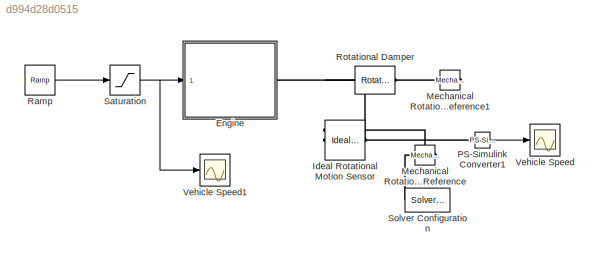
MODEL slx_d994d28d0515
KIND model
CONFIG AbsTol = 1e-4
CONFIG EnableMultiTasking = on
CONFIG FixedStep = auto
CONFIG MaxStep = auto
CONFIG MinStep = auto
CONFIG RelTol = 1e-5
CONFIG SampleTimeConstraint = Unconstrained
CONFIG Solver = ode15s
CONFIG SolverName = ode15s
CONFIG StartTime = 0.0
CONFIG StopTime = 100
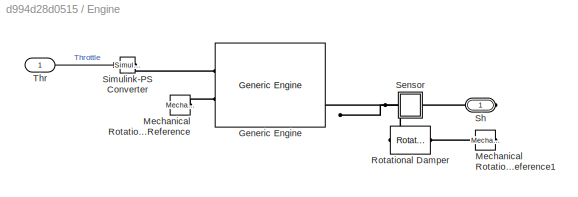
BLOCK [SubSystem] Engine
  Ports = [1, 0, 0, 0, 0, 0, 1]
  RequestExecContextInheritance = off
BLOCK [Reference] Engine/Generic Engine  REF=sdl_lib/Engines/Generic Engine
  Ports = [0, 0, 0, 0, 0, 2, 3]
  SourceBlock = sdl_lib/Engines/Generic Engine
  SourceProductBaseCode = LD
  SourceType = Generic Engine
BLOCK [Reference] Engine/Mechanical Rotational Reference  REF=fl_lib/Mechanical/Rotational Elements/Mechanical
Rotational Reference
  Ports = [0, 0, 0, 0, 0, 1]
  SourceBlock = fl_lib/Mechanical/Rotational Elements/Mechanical\nRotational Reference
  SourceProductBaseCode = SS
  SourceType = Mechanical\nRotational Reference
BLOCK [Reference] Engine/Mechanical Rotational Reference1  REF=fl_lib/Mechanical/Rotational Elements/Mechanical
Rotational Reference
  NameLocation = top
  Ports = [0, 0, 0, 0, 0, 1]
  SourceBlock = fl_lib/Mechanical/Rotational Elements/Mechanical\nRotational Reference
  SourceProductBaseCode = SS
  SourceType = Mechanical\nRotational Reference
BLOCK [Reference] Engine/Rotational Damper  REF=fl_lib/Mechanical/Rotational Elements/Rotational Damper
  Ports = [0, 0, 0, 0, 0, 1, 1]
  SourceBlock = fl_lib/Mechanical/Rotational Elements/Rotational Damper
  SourceProductBaseCode = SS
  SourceType = Rotational Damper
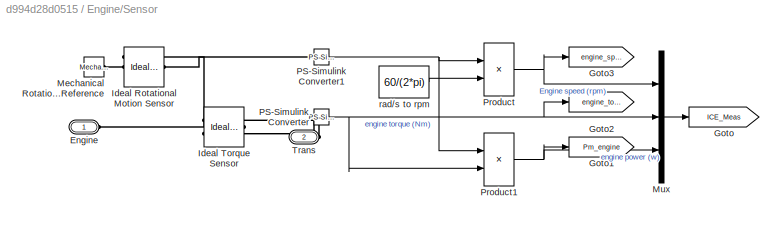
BLOCK [SubSystem] Engine/Sensor
  Ports = [0, 0, 0, 0, 0, 1, 1]
  RequestExecContextInheritance = off
BLOCK [PMIOPort] Engine/Sensor/Engine
  Side = Left
BLOCK [Goto] Engine/Sensor/Goto
  GotoTag = ICE_Meas
  TagVisibility = global
BLOCK [Goto] Engine/Sensor/Goto1
  GotoTag = Pm_engine
  TagVisibility = global
BLOCK [Goto] Engine/Sensor/Goto2
  GotoTag = engine_torque
  TagVisibility = global
BLOCK [Goto] Engine/Sensor/Goto3
  GotoTag = engine_speed
  TagVisibility = global
BLOCK [Reference] Engine/Sensor/Ideal Rotational Motion Sensor  REF=fl_lib/Mechanical/Mechanical Sensors/Ideal Rotational
Motion Sensor
  Ports = [0, 0, 0, 0, 0, 1, 3]
  SourceBlock = fl_lib/Mechanical/Mechanical Sensors/Ideal Rotational\nMotion Sensor
  SourceProductBaseCode = SS
  SourceType = Ideal Rotational\nMotion Sensor
BLOCK [Reference] Engine/Sensor/Ideal Torque Sensor  REF=fl_lib/Mechanical/Mechanical Sensors/Ideal Torque Sensor
  Ports = [0, 0, 0, 0, 0, 1, 2]
  SourceBlock = fl_lib/Mechanical/Mechanical Sensors/Ideal Torque Sensor
  SourceProductBaseCode = SS
  SourceType = Ideal Torque Sensor
BLOCK [Reference] Engine/Sensor/Mechanical Rotational Reference  REF=fl_lib/Mechanical/Rotational Elements/Mechanical
Rotational Reference
  Ports = [0, 0, 0, 0, 0, 1]
  SourceBlock = fl_lib/Mechanical/Rotational Elements/Mechanical\nRotational Reference
  SourceProductBaseCode = SS
  SourceType = Mechanical\nRotational Reference
BLOCK [Mux] Engine/Sensor/Mux
  DisplayOption = bar
  Inputs = 3
  Ports = [3, 1]
BLOCK [Reference] Engine/Sensor/PS-Simulink Converter  REF=nesl_utility/PS-Simulink
Converter
  Ports = [0, 1, 0, 0, 0, 1]
  SourceBlock = nesl_utility/PS-Simulink\nConverter
  SourceProductBaseCode = SS
  SourceType = PS-Simulink\nConverter
BLOCK [Reference] Engine/Sensor/PS-Simulink Converter1  REF=nesl_utility/PS-Simulink
Converter
  Ports = [0, 1, 0, 0, 0, 1]
  SourceBlock = nesl_utility/PS-Simulink\nConverter
  SourceProductBaseCode = SS
  SourceType = PS-Simulink\nConverter
BLOCK [Product] Engine/Sensor/Product
  Ports = [2, 1]
  RndMeth = Zero
BLOCK [Product] Engine/Sensor/Product1
  Ports = [2, 1]
  RndMeth = Zero
BLOCK [PMIOPort] Engine/Sensor/Trans
  Port = 2
  Side = Right
BLOCK [Constant] Engine/Sensor/rad//s to rpm
  Value = 60/(2*pi)
BLOCK [PMIOPort] Engine/Sh
  Side = Right
BLOCK [Reference] Engine/Simulink-PS Converter  REF=nesl_utility/Simulink-PS
Converter
  Ports = [1, 0, 0, 0, 0, 0, 1]
  SourceBlock = nesl_utility/Simulink-PS\nConverter
  SourceProductBaseCode = SS
  SourceType = Simulink-PS\nConverter
BLOCK [Inport] Engine/Thr
BLOCK [Reference] Ideal Rotational Motion Sensor  REF=fl_lib/Mechanical/Mechanical Sensors/Ideal Rotational
Motion Sensor
  Ports = [0, 0, 0, 0, 0, 1, 3]
  SourceBlock = fl_lib/Mechanical/Mechanical Sensors/Ideal Rotational\nMotion Sensor
  SourceProductBaseCode = SS
  SourceType = Ideal Rotational\nMotion Sensor
BLOCK [Reference] Mechanical Rotational Reference  REF=fl_lib/Mechanical/Rotational Elements/Mechanical
Rotational Reference
  NameLocation = top
  Ports = [0, 0, 0, 0, 0, 1]
  SourceBlock = fl_lib/Mechanical/Rotational Elements/Mechanical\nRotational Reference
  SourceProductBaseCode = SS
  SourceType = Mechanical\nRotational Reference
BLOCK [Reference] Mechanical Rotational Reference1  REF=fl_lib/Mechanical/Rotational Elements/Mechanical
Rotational Reference
  NameLocation = top
  Ports = [0, 0, 0, 0, 0, 1]
  SourceBlock = fl_lib/Mechanical/Rotational Elements/Mechanical\nRotational Reference
  SourceProductBaseCode = SS
  SourceType = Mechanical\nRotational Reference
BLOCK [Reference] PS-Simulink Converter1  REF=nesl_utility/PS-Simulink
Converter
  Ports = [0, 1, 0, 0, 0, 1]
  SourceBlock = nesl_utility/PS-Simulink\nConverter
  SourceProductBaseCode = SS
  SourceType = PS-Simulink\nConverter
BLOCK [Reference] Ramp  REF=simulink/Sources/Ramp
  Ports = [0, 1]
  SourceBlock = simulink/Sources/Ramp
  SourceProductBaseCode = SL
  SourceType = Ramp
BLOCK [Reference] Rotational Damper  REF=fl_lib/Mechanical/Rotational Elements/Rotational Damper
  Ports = [0, 0, 0, 0, 0, 1, 1]
  SourceBlock = fl_lib/Mechanical/Rotational Elements/Rotational Damper
  SourceProductBaseCode = SS
  SourceType = Rotational Damper
BLOCK [Saturate] Saturation
  LowerLimit = -1
  UpperLimit = 1
BLOCK [Reference] Solver Configuration  REF=nesl_utility/Solver
Configuration
  NameLocation = top
  Ports = [0, 0, 0, 0, 0, 0, 1]
  SourceBlock = nesl_utility/Solver\nConfiguration
  SourceProductBaseCode = SS
  SourceType = Solver\nConfiguration
BLOCK [Scope] Vehicle Speed
  Floating = off
  NumInputPorts = 1
  Ports = [1]
  ScopeSpecificationString = Simulink.scopes.TimeScopeBlockCfg('CurrentConfiguration', extmgr.ConfigurationSet(extmgr.Configuration('Core','General UI',true),extmgr.Configuration('Core','Source UI',true),extmgr.Configuration('Sources','WiredSimulink',true,'DataLoggingSaveFormat','StructureWithTime','DataLoggingDecimation','decimation','DataLoggingDecimateData',true),extmgr.Configuration('Visuals','Time Domain',true,'Serialize...<+1611ch>
BLOCK [Scope] Vehicle Speed1
  Floating = off
  NumInputPorts = 1
  Ports = [1]
  ScopeSpecificationString = Simulink.scopes.TimeScopeBlockCfg('CurrentConfiguration', extmgr.ConfigurationSet(extmgr.Configuration('Core','General UI',true),extmgr.Configuration('Core','Source UI',true),extmgr.Configuration('Sources','WiredSimulink',true,'DataLoggingVariableName','ScopeData1','DataLoggingSaveFormat','StructureWithTime','DataLoggingDecimation','decimation','DataLoggingDecimateData',true),extmgr.Configuration(...<+1605ch>
LINE Engine/Sensor/Mux:1 -> Engine/Sensor/Goto:1
NET Engine/Sensor/PS-Simulink Converter1:1 -> Engine/Sensor/Product1:1, Engine/Sensor/Product:1
NET Engine/Sensor/PS-Simulink Converter:1 -> Engine/Sensor/Goto2:1, Engine/Sensor/Mux:2, Engine/Sensor/Product1:2
NET Engine/Sensor/Product1:1 -> Engine/Sensor/Goto1:1, Engine/Sensor/Mux:3
NET Engine/Sensor/Product:1 -> Engine/Sensor/Goto3:1, Engine/Sensor/Mux:1
LINE Engine/Sensor/rad//s to rpm:1 -> Engine/Sensor/Product:2
LINE Engine/Thr:1 -> Engine/Simulink-PS Converter:1
LINE PS-Simulink Converter1:1 -> Vehicle Speed:1
LINE Ramp:1 -> Saturation:1
NET Saturation:1 -> Engine:1, Vehicle Speed1:1
PLINE Engine/Generic Engine:LConn1 -- Engine/Simulink-PS Converter:RConn1
PLINE Engine/Generic Engine:LConn2 -- Engine/Mechanical Rotational Reference:LConn1
PNET net1: Engine/Generic Engine:RConn3 -- Engine/Rotational Damper:LConn1 -- Engine/Sensor:LConn1
PLINE Engine/Mechanical Rotational Reference1:LConn1 -- Engine/Rotational Damper:RConn1
PNET net2: Engine/Sensor/Engine:RConn1 -- Engine/Sensor/Ideal Rotational Motion Sensor:RConn1 -- Engine/Sensor/Ideal Torque Sensor:LConn1
PLINE Engine/Sensor/Ideal Rotational Motion Sensor:LConn1 -- Engine/Sensor/Mechanical Rotational Reference:LConn1
PLINE Engine/Sensor/Ideal Rotational Motion Sensor:RConn2 -- Engine/Sensor/PS-Simulink Converter1:LConn1
PLINE Engine/Sensor/Ideal Torque Sensor:RConn1 -- Engine/Sensor/Trans:RConn1
PLINE Engine/Sensor/Ideal Torque Sensor:RConn2 -- Engine/Sensor/PS-Simulink Converter:LConn1
PLINE Engine/Sensor:RConn1 -- Engine/Sh:RConn1
PNET net3: Engine:RConn1 -- Ideal Rotational Motion Sensor:LConn1 -- Rotational Damper:LConn1
PNET net4: Ideal Rotational Motion Sensor:RConn1 -- Mechanical Rotational Reference:LConn1 -- Solver Configuration:RConn1
PLINE Ideal Rotational Motion Sensor:RConn2 -- PS-Simulink Converter1:LConn1
PLINE Mechanical Rotational Reference1:LConn1 -- Rotational Damper:RConn1
note: NET lines group one-source signal fan-out (src -> all destinations, sorted); 1:1 wires keep LINE; PNET lines group multi-terminal physical nets as a canonical sorted terminal list (undirected conserving connections); 2-terminal nets keep the pairwise PLINE form
